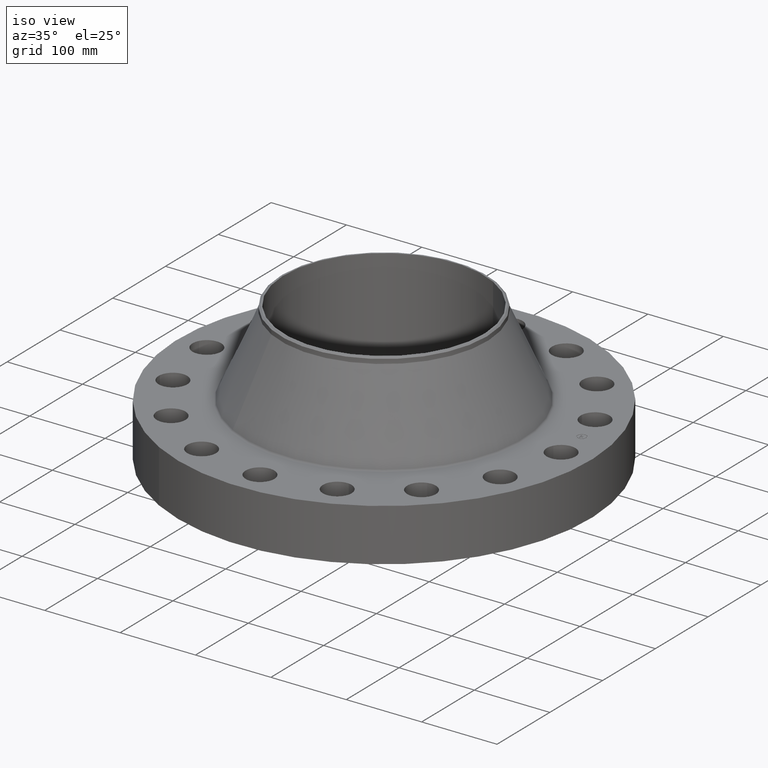
[diagram: clean part render]
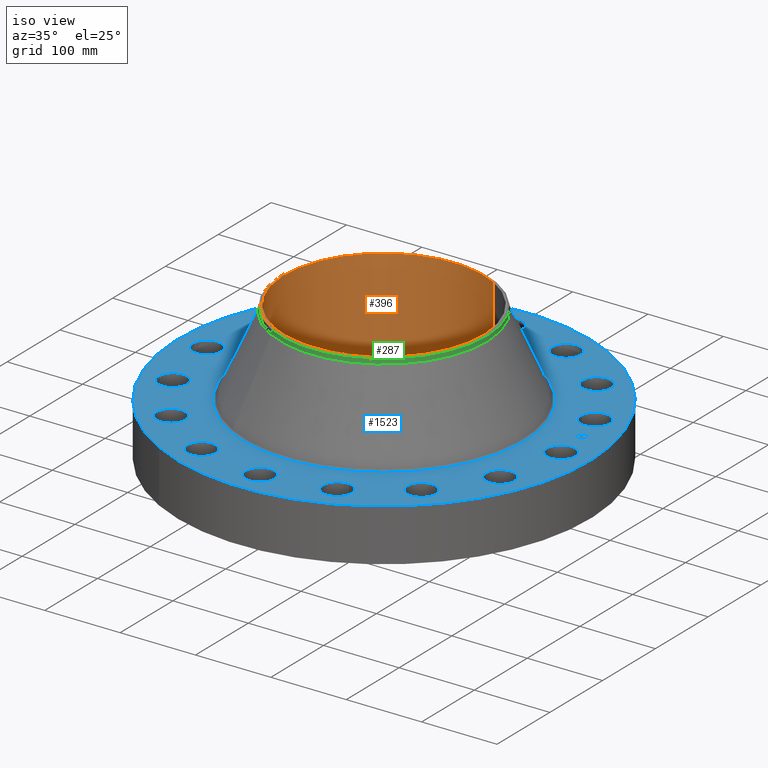
[diagram: same view with three faces highlighted in distinct colors, each labeled with its STEP entity id]
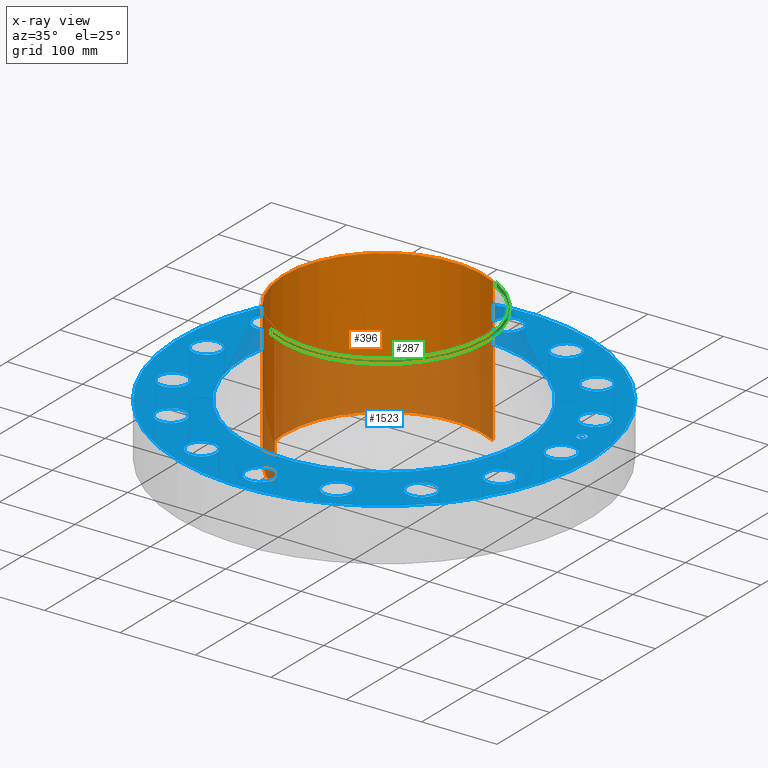
[diagram: x-ray of the same camera — body ghosted, the three highlighted faces saturated]
A machine part, iso view with three faces highlighted in distinct colors.
The next image is the same camera in x-ray (body ghosted, the three faces saturated) — at least one of them is partly hidden behind the body in this view.
Their STEP definitions:

[orange] entity #396 — the highlighted cylindrical surface (partial cylindrical patch) has radius 132.334 mm, axis along (0, 0, -1).
#343=AXIS2_PLACEMENT_3D('Cylinder Axis2P3D',#340,#341,#342) ;
#382=AXIS2_PLACEMENT_3D('Circle Axis2P3D',#380,#381,$) ;
#387=AXIS2_PLACEMENT_3D('Circle Axis2P3D',#385,#386,$) ;
#340=CARTESIAN_POINT('Axis2P3D Location',(0.,0.,3.50000000001)) ;
#349=CARTESIAN_POINT('Vertex',(2.49780705614,4.57220514747,7.25000000003)) ;
#351=CARTESIAN_POINT('Vertex',(-2.49780705614,-4.57220514747,7.25000000003)) ;
#354=CARTESIAN_POINT('Line Origine',(2.49780705614,4.57220514747,3.50000000001)) ;
#358=CARTESIAN_POINT('Vertex',(2.49780705614,4.57220514747,-0.250000000001)) ;
#365=CARTESIAN_POINT('Vertex',(-2.49780705614,-4.57220514747,-0.250000000001)) ;
#368=CARTESIAN_POINT('Line Origine',(-2.49780705614,-4.57220514747,3.50000000001)) ;
#380=CARTESIAN_POINT('Axis2P3D Location',(0.,0.,7.25000000003)) ;
#385=CARTESIAN_POINT('Axis2P3D Location',(0.,0.,-0.250000000001)) ;
#341=DIRECTION('Axis2P3D Direction',(0.,0.,-0.0393700787402)) ;
#342=DIRECTION('Axis2P3D XDirection',(-0.0188750212049,-0.0345504945626,0.)) ;
#355=DIRECTION('Vector Direction',(0.,0.,-0.0393700787402)) ;
#369=DIRECTION('Vector Direction',(0.,0.,-0.0393700787402)) ;
#381=DIRECTION('Axis2P3D Direction',(0.,0.,-0.0393700787402)) ;
#386=DIRECTION('Axis2P3D Direction',(0.,0.,-0.0393700787402)) ;
#356=VECTOR('Line Direction',#355,0.0393700787402) ;
#370=VECTOR('Line Direction',#369,0.0393700787402) ;
#391=ORIENTED_EDGE('',*,*,#384,.F.) ;
#392=ORIENTED_EDGE('',*,*,#372,.T.) ;
#393=ORIENTED_EDGE('',*,*,#389,.T.) ;
#394=ORIENTED_EDGE('',*,*,#360,.F.) ;
#396=ADVANCED_FACE('PartBody',(#395),#344,.F.) ;
#383=CIRCLE('generated circle',#382,5.21000000002) ;
#388=CIRCLE('generated circle',#387,5.21000000002) ;
#344=CYLINDRICAL_SURFACE('generated cylinder',#343,5.21000000002) ;
#360=EDGE_CURVE('',#350,#359,#357,.T.) ;
#372=EDGE_CURVE('',#352,#366,#371,.T.) ;
#384=EDGE_CURVE('',#352,#350,#383,.T.) ;
#389=EDGE_CURVE('',#366,#359,#388,.T.) ;
#390=EDGE_LOOP('',(#391,#392,#393,#394)) ;
#395=FACE_OUTER_BOUND('',#390,.T.) ;
#357=LINE('Line',#354,#356) ;
#371=LINE('Line',#368,#370) ;
#350=VERTEX_POINT('',#349) ;
#352=VERTEX_POINT('',#351) ;
#359=VERTEX_POINT('',#358) ;
#366=VERTEX_POINT('',#365) ;

[blue] entity #1523 — the highlighted planar face has unit normal (0, 0, -1).
#65=AXIS2_PLACEMENT_3D('Circle Axis2P3D',#63,#64,$) ;
#82=AXIS2_PLACEMENT_3D('Circle Axis2P3D',#80,#81,$) ;
#115=AXIS2_PLACEMENT_3D('Circle Axis2P3D',#113,#114,$) ;
#139=AXIS2_PLACEMENT_3D('Circle Axis2P3D',#137,#138,$) ;
#156=AXIS2_PLACEMENT_3D('Circle Axis2P3D',#154,#155,$) ;
#191=AXIS2_PLACEMENT_3D('Circle Axis2P3D',#189,#190,$) ;
#804=AXIS2_PLACEMENT_3D('Circle Axis2P3D',#802,#803,$) ;
#816=AXIS2_PLACEMENT_3D('Circle Axis2P3D',#814,#815,$) ;
#847=AXIS2_PLACEMENT_3D('Circle Axis2P3D',#845,#846,$) ;
#859=AXIS2_PLACEMENT_3D('Circle Axis2P3D',#857,#858,$) ;
#890=AXIS2_PLACEMENT_3D('Circle Axis2P3D',#888,#889,$) ;
#902=AXIS2_PLACEMENT_3D('Circle Axis2P3D',#900,#901,$) ;
#933=AXIS2_PLACEMENT_3D('Circle Axis2P3D',#931,#932,$) ;
#945=AXIS2_PLACEMENT_3D('Circle Axis2P3D',#943,#944,$) ;
#976=AXIS2_PLACEMENT_3D('Circle Axis2P3D',#974,#975,$) ;
#988=AXIS2_PLACEMENT_3D('Circle Axis2P3D',#986,#987,$) ;
#1019=AXIS2_PLACEMENT_3D('Circle Axis2P3D',#1017,#1018,$) ;
#1031=AXIS2_PLACEMENT_3D('Circle Axis2P3D',#1029,#1030,$) ;
#1062=AXIS2_PLACEMENT_3D('Circle Axis2P3D',#1060,#1061,$) ;
#1074=AXIS2_PLACEMENT_3D('Circle Axis2P3D',#1072,#1073,$) ;
#1105=AXIS2_PLACEMENT_3D('Circle Axis2P3D',#1103,#1104,$) ;
#1117=AXIS2_PLACEMENT_3D('Circle Axis2P3D',#1115,#1116,$) ;
#1148=AXIS2_PLACEMENT_3D('Circle Axis2P3D',#1146,#1147,$) ;
#1160=AXIS2_PLACEMENT_3D('Circle Axis2P3D',#1158,#1159,$) ;
#1191=AXIS2_PLACEMENT_3D('Circle Axis2P3D',#1189,#1190,$) ;
#1203=AXIS2_PLACEMENT_3D('Circle Axis2P3D',#1201,#1202,$) ;
#1234=AXIS2_PLACEMENT_3D('Circle Axis2P3D',#1232,#1233,$) ;
#1246=AXIS2_PLACEMENT_3D('Circle Axis2P3D',#1244,#1245,$) ;
#1277=AXIS2_PLACEMENT_3D('Circle Axis2P3D',#1275,#1276,$) ;
#1289=AXIS2_PLACEMENT_3D('Circle Axis2P3D',#1287,#1288,$) ;
#1320=AXIS2_PLACEMENT_3D('Circle Axis2P3D',#1318,#1319,$) ;
#1332=AXIS2_PLACEMENT_3D('Circle Axis2P3D',#1330,#1331,$) ;
#1363=AXIS2_PLACEMENT_3D('Circle Axis2P3D',#1361,#1362,$) ;
#1375=AXIS2_PLACEMENT_3D('Circle Axis2P3D',#1373,#1374,$) ;
#1406=AXIS2_PLACEMENT_3D('Circle Axis2P3D',#1404,#1405,$) ;
#1418=AXIS2_PLACEMENT_3D('Circle Axis2P3D',#1416,#1417,$) ;
#1431=AXIS2_PLACEMENT_3D('Plane Axis2P3D',#1428,#1429,#1430) ;
#1507=AXIS2_PLACEMENT_3D('Circle Axis2P3D',#1505,#1506,$) ;
#1516=AXIS2_PLACEMENT_3D('Circle Axis2P3D',#1514,#1515,$) ;
#46=CARTESIAN_POINT('Vertex',(8.59181307862,0.359569153955,2.75000000001)) ;
#60=CARTESIAN_POINT('Vertex',(9.90818692146,-0.359569153955,2.75000000001)) ;
#63=CARTESIAN_POINT('Axis2P3D Location',(9.25000000004,0.,2.75000000001)) ;
#80=CARTESIAN_POINT('Axis2P3D Location',(9.25000000004,0.,2.75000000001)) ;
#110=CARTESIAN_POINT('Vertex',(-5.15382454002,-9.43401254036,2.75000000001)) ;
#113=CARTESIAN_POINT('Axis2P3D Location',(0.,0.,2.75000000001)) ;
#117=CARTESIAN_POINT('Vertex',(5.15382454002,9.43401254036,2.75000000001)) ;
#137=CARTESIAN_POINT('Axis2P3D Location',(0.,0.,2.75000000001)) ;
#154=CARTESIAN_POINT('Axis2P3D Location',(0.,0.,2.75000000001)) ;
#158=CARTESIAN_POINT('Vertex',(3.51314661007,6.43077173431,2.75000000001)) ;
#160=CARTESIAN_POINT('Vertex',(-3.51314661007,-6.43077173431,2.75000000001)) ;
#189=CARTESIAN_POINT('Axis2P3D Location',(0.,0.,2.75000000001)) ;
#792=CARTESIAN_POINT('Vertex',(-8.0754014085,2.9557459373,2.75000000001)) ;
#799=CARTESIAN_POINT('Vertex',(-9.01636994302,4.12389756148,2.75000000001)) ;
#802=CARTESIAN_POINT('Axis2P3D Location',(-8.54588567576,3.53982174939,2.75000000001)) ;
#814=CARTESIAN_POINT('Axis2P3D Location',(-8.54588567576,3.53982174939,2.75000000001)) ;
#835=CARTESIAN_POINT('Vertex',(6.32958307764,-5.82107550351,2.75000000001)) ;
#842=CARTESIAN_POINT('Vertex',(6.75189237436,-7.26039994849,2.75000000001)) ;
#845=CARTESIAN_POINT('Axis2P3D Location',(6.540737726,-6.540737726,2.75000000001)) ;
#857=CARTESIAN_POINT('Axis2P3D Location',(6.540737726,-6.540737726,2.75000000001)) ;
#878=CARTESIAN_POINT('Vertex',(-6.32958307764,5.82107550351,2.75000000001)) ;
#885=CARTESIAN_POINT('Vertex',(-6.75189237436,7.26039994849,2.75000000001)) ;
#888=CARTESIAN_POINT('Axis2P3D Location',(-6.540737726,6.540737726,2.75000000001)) ;
#900=CARTESIAN_POINT('Axis2P3D Location',(-6.540737726,6.540737726,2.75000000001)) ;
#921=CARTESIAN_POINT('Vertex',(3.62014310103,-7.80019909249,2.75000000001)) ;
#928=CARTESIAN_POINT('Vertex',(3.45950039776,-9.29157225904,2.75000000001)) ;
#931=CARTESIAN_POINT('Axis2P3D Location',(3.53982174939,-8.54588567576,2.75000000001)) ;
#943=CARTESIAN_POINT('Axis2P3D Location',(3.53982174939,-8.54588567576,2.75000000001)) ;
#964=CARTESIAN_POINT('Vertex',(-3.62014310103,7.80019909249,2.75000000001)) ;
#971=CARTESIAN_POINT('Vertex',(-3.45950039776,9.29157225904,2.75000000001)) ;
#974=CARTESIAN_POINT('Axis2P3D Location',(-3.53982174939,8.54588567576,2.75000000001)) ;
#986=CARTESIAN_POINT('Axis2P3D Location',(-3.53982174939,8.54588567576,2.75000000001)) ;
#1007=CARTESIAN_POINT('Vertex',(0.359569153955,-8.59181307862,2.75000000001)) ;
#1014=CARTESIAN_POINT('Vertex',(-0.359569153955,-9.90818692146,2.75000000001)) ;
#1017=CARTESIAN_POINT('Axis2P3D Location',(5.66399144608E-016,-9.25000000004,2.75000000001)) ;
#1029=CARTESIAN_POINT('Axis2P3D Location',(5.66399144608E-016,-9.25000000004,2.75000000001)) ;
#1050=CARTESIAN_POINT('Vertex',(-0.359569153955,8.59181307862,2.75000000001)) ;
#1057=CARTESIAN_POINT('Vertex',(0.359569153955,9.90818692146,2.75000000001)) ;
#1060=CARTESIAN_POINT('Axis2P3D Location',(-1.69919743382E-015,9.25000000004,2.75000000001)) ;
#1072=CARTESIAN_POINT('Axis2P3D Location',(-1.69919743382E-015,9.25000000004,2.75000000001)) ;
#1093=CARTESIAN_POINT('Vertex',(-2.9557459373,-8.0754014085,2.75000000001)) ;
#1100=CARTESIAN_POINT('Vertex',(-4.12389756148,-9.01636994302,2.75000000001)) ;
#1103=CARTESIAN_POINT('Axis2P3D Location',(-3.53982174939,-8.54588567576,2.75000000001)) ;
#1115=CARTESIAN_POINT('Axis2P3D Location',(-3.53982174939,-8.54588567576,2.75000000001)) ;
#1136=CARTESIAN_POINT('Vertex',(2.9557459373,8.0754014085,2.75000000001)) ;
#1143=CARTESIAN_POINT('Vertex',(4.12389756148,9.01636994302,2.75000000001)) ;
#1146=CARTESIAN_POINT('Axis2P3D Location',(3.53982174939,8.54588567576,2.75000000001)) ;
#1158=CARTESIAN_POINT('Axis2P3D Location',(3.53982174939,8.54588567576,2.75000000001)) ;
#1179=CARTESIAN_POINT('Vertex',(-5.82107550351,-6.32958307764,2.75000000001)) ;
#1186=CARTESIAN_POINT('Vertex',(-7.26039994849,-6.75189237436,2.75000000001)) ;
#1189=CARTESIAN_POINT('Axis2P3D Location',(-6.540737726,-6.540737726,2.75000000001)) ;
#1201=CARTESIAN_POINT('Axis2P3D Location',(-6.540737726,-6.540737726,2.75000000001)) ;
#1222=CARTESIAN_POINT('Vertex',(5.82107550351,6.32958307764,2.75000000001)) ;
#1229=CARTESIAN_POINT('Vertex',(7.26039994849,6.75189237436,2.75000000001)) ;
#1232=CARTESIAN_POINT('Axis2P3D Location',(6.540737726,6.540737726,2.75000000001)) ;
#1244=CARTESIAN_POINT('Axis2P3D Location',(6.540737726,6.540737726,2.75000000001)) ;
#1265=CARTESIAN_POINT('Vertex',(-7.80019909249,-3.62014310103,2.75000000001)) ;
#1272=CARTESIAN_POINT('Vertex',(-9.29157225904,-3.45950039776,2.75000000001)) ;
#1275=CARTESIAN_POINT('Axis2P3D Location',(-8.54588567576,-3.53982174939,2.75000000001)) ;
#1287=CARTESIAN_POINT('Axis2P3D Location',(-8.54588567576,-3.53982174939,2.75000000001)) ;
#1308=CARTESIAN_POINT('Vertex',(7.80019909249,3.62014310103,2.75000000001)) ;
#1315=CARTESIAN_POINT('Vertex',(9.29157225904,3.45950039776,2.75000000001)) ;
#1318=CARTESIAN_POINT('Axis2P3D Location',(8.54588567576,3.53982174939,2.75000000001)) ;
#1330=CARTESIAN_POINT('Axis2P3D Location',(8.54588567576,3.53982174939,2.75000000001)) ;
#1351=CARTESIAN_POINT('Vertex',(-8.59181307862,-0.359569153955,2.75000000001)) ;
#1358=CARTESIAN_POINT('Vertex',(-9.90818692146,0.359569153955,2.75000000001)) ;
#1361=CARTESIAN_POINT('Axis2P3D Location',(-9.25000000004,-1.13279828922E-015,2.75000000001)) ;
#1373=CARTESIAN_POINT('Axis2P3D Location',(-9.25000000004,-1.13279828922E-015,2.75000000001)) ;
#1394=CARTESIAN_POINT('Vertex',(8.0754014085,-2.9557459373,2.75000000001)) ;
#1401=CARTESIAN_POINT('Vertex',(9.01636994302,-4.12389756148,2.75000000001)) ;
#1404=CARTESIAN_POINT('Axis2P3D Location',(8.54588567576,-3.53982174939,2.75000000001)) ;
#1416=CARTESIAN_POINT('Axis2P3D Location',(8.54588567576,-3.53982174939,2.75000000001)) ;
#1428=CARTESIAN_POINT('Axis2P3D Location',(0.,10.75,2.75000000001)) ;
#1505=CARTESIAN_POINT('Axis2P3D Location',(9.07226384377,1.80458547866,2.75000000001)) ;
#1509=CARTESIAN_POINT('Vertex',(9.02397898907,2.04732983556,2.75000000001)) ;
#1511=CARTESIAN_POINT('Vertex',(9.12054869847,1.56184112176,2.75000000001)) ;
#1514=CARTESIAN_POINT('Axis2P3D Location',(9.07226384377,1.80458547866,2.75000000001)) ;
#64=DIRECTION('Axis2P3D Direction',(0.,-0.,-0.0393700787402)) ;
#81=DIRECTION('Axis2P3D Direction',(0.,-0.,-0.0393700787402)) ;
#114=DIRECTION('Axis2P3D Direction',(0.,0.,-0.0393700787402)) ;
#138=DIRECTION('Axis2P3D Direction',(0.,0.,-0.0393700787402)) ;
#155=DIRECTION('Axis2P3D Direction',(0.,0.,-0.0393700787402)) ;
#190=DIRECTION('Axis2P3D Direction',(0.,0.,-0.0393700787402)) ;
#803=DIRECTION('Axis2P3D Direction',(0.,0.,-0.0393700787402)) ;
#815=DIRECTION('Axis2P3D Direction',(0.,0.,-0.0393700787402)) ;
#846=DIRECTION('Axis2P3D Direction',(0.,-0.,-0.0393700787402)) ;
#858=DIRECTION('Axis2P3D Direction',(0.,-0.,-0.0393700787402)) ;
#889=DIRECTION('Axis2P3D Direction',(0.,0.,-0.0393700787402)) ;
#901=DIRECTION('Axis2P3D Direction',(0.,0.,-0.0393700787402)) ;
#932=DIRECTION('Axis2P3D Direction',(0.,-0.,-0.0393700787402)) ;
#944=DIRECTION('Axis2P3D Direction',(0.,-0.,-0.0393700787402)) ;
#975=DIRECTION('Axis2P3D Direction',(0.,0.,-0.0393700787402)) ;
#987=DIRECTION('Axis2P3D Direction',(0.,0.,-0.0393700787402)) ;
#1018=DIRECTION('Axis2P3D Direction',(0.,-0.,-0.0393700787402)) ;
#1030=DIRECTION('Axis2P3D Direction',(0.,-0.,-0.0393700787402)) ;
#1061=DIRECTION('Axis2P3D Direction',(0.,0.,-0.0393700787402)) ;
#1073=DIRECTION('Axis2P3D Direction',(0.,0.,-0.0393700787402)) ;
#1104=DIRECTION('Axis2P3D Direction',(-0.,0.,-0.0393700787402)) ;
#1116=DIRECTION('Axis2P3D Direction',(-0.,0.,-0.0393700787402)) ;
#1147=DIRECTION('Axis2P3D Direction',(0.,0.,-0.0393700787402)) ;
#1159=DIRECTION('Axis2P3D Direction',(0.,0.,-0.0393700787402)) ;
#1190=DIRECTION('Axis2P3D Direction',(-0.,0.,-0.0393700787402)) ;
#1202=DIRECTION('Axis2P3D Direction',(-0.,0.,-0.0393700787402)) ;
#1233=DIRECTION('Axis2P3D Direction',(0.,0.,-0.0393700787402)) ;
#1245=DIRECTION('Axis2P3D Direction',(0.,0.,-0.0393700787402)) ;
#1276=DIRECTION('Axis2P3D Direction',(-0.,0.,-0.0393700787402)) ;
#1288=DIRECTION('Axis2P3D Direction',(-0.,0.,-0.0393700787402)) ;
#1319=DIRECTION('Axis2P3D Direction',(0.,0.,-0.0393700787402)) ;
#1331=DIRECTION('Axis2P3D Direction',(0.,0.,-0.0393700787402)) ;
#1362=DIRECTION('Axis2P3D Direction',(-0.,0.,-0.0393700787402)) ;
#1374=DIRECTION('Axis2P3D Direction',(-0.,0.,-0.0393700787402)) ;
#1405=DIRECTION('Axis2P3D Direction',(0.,-0.,-0.0393700787402)) ;
#1417=DIRECTION('Axis2P3D Direction',(0.,-0.,-0.0393700787402)) ;
#1429=DIRECTION('Axis2P3D Direction',(0.,0.,-0.0393700787402)) ;
#1430=DIRECTION('Axis2P3D XDirection',(0.0393700787402,0.,0.)) ;
#1506=DIRECTION('Axis2P3D Direction',(0.,0.,-0.0393700787402)) ;
#1515=DIRECTION('Axis2P3D Direction',(0.,0.,-0.0393700787402)) ;
#1434=ORIENTED_EDGE('',*,*,#141,.F.) ;
#1435=ORIENTED_EDGE('',*,*,#119,.F.) ;
#1438=ORIENTED_EDGE('',*,*,#67,.T.) ;
#1439=ORIENTED_EDGE('',*,*,#84,.T.) ;
#1442=ORIENTED_EDGE('',*,*,#193,.T.) ;
#1443=ORIENTED_EDGE('',*,*,#162,.T.) ;
#1446=ORIENTED_EDGE('',*,*,#1420,.T.) ;
#1447=ORIENTED_EDGE('',*,*,#1408,.T.) ;
#1450=ORIENTED_EDGE('',*,*,#861,.T.) ;
#1451=ORIENTED_EDGE('',*,*,#849,.T.) ;
#1454=ORIENTED_EDGE('',*,*,#947,.T.) ;
#1455=ORIENTED_EDGE('',*,*,#935,.T.) ;
#1458=ORIENTED_EDGE('',*,*,#1033,.T.) ;
#1459=ORIENTED_EDGE('',*,*,#1021,.T.) ;
#1462=ORIENTED_EDGE('',*,*,#1119,.T.) ;
#1463=ORIENTED_EDGE('',*,*,#1107,.T.) ;
#1466=ORIENTED_EDGE('',*,*,#1205,.T.) ;
#1467=ORIENTED_EDGE('',*,*,#1193,.T.) ;
#1470=ORIENTED_EDGE('',*,*,#1291,.T.) ;
#1471=ORIENTED_EDGE('',*,*,#1279,.T.) ;
#1474=ORIENTED_EDGE('',*,*,#1377,.T.) ;
#1475=ORIENTED_EDGE('',*,*,#1365,.T.) ;
#1478=ORIENTED_EDGE('',*,*,#818,.T.) ;
#1479=ORIENTED_EDGE('',*,*,#806,.T.) ;
#1482=ORIENTED_EDGE('',*,*,#904,.T.) ;
#1483=ORIENTED_EDGE('',*,*,#892,.T.) ;
#1486=ORIENTED_EDGE('',*,*,#990,.T.) ;
#1487=ORIENTED_EDGE('',*,*,#978,.T.) ;
#1490=ORIENTED_EDGE('',*,*,#1076,.T.) ;
#1491=ORIENTED_EDGE('',*,*,#1064,.T.) ;
#1494=ORIENTED_EDGE('',*,*,#1162,.T.) ;
#1495=ORIENTED_EDGE('',*,*,#1150,.T.) ;
#1498=ORIENTED_EDGE('',*,*,#1248,.T.) ;
#1499=ORIENTED_EDGE('',*,*,#1236,.T.) ;
#1502=ORIENTED_EDGE('',*,*,#1334,.T.) ;
#1503=ORIENTED_EDGE('',*,*,#1322,.T.) ;
#1520=ORIENTED_EDGE('',*,*,#1513,.T.) ;
#1521=ORIENTED_EDGE('',*,*,#1518,.T.) ;
#1440=FACE_BOUND('',#1437,.T.) ;
#1444=FACE_BOUND('',#1441,.T.) ;
#1448=FACE_BOUND('',#1445,.T.) ;
#1452=FACE_BOUND('',#1449,.T.) ;
#1456=FACE_BOUND('',#1453,.T.) ;
#1460=FACE_BOUND('',#1457,.T.) ;
#1464=FACE_BOUND('',#1461,.T.) ;
#1468=FACE_BOUND('',#1465,.T.) ;
#1472=FACE_BOUND('',#1469,.T.) ;
#1476=FACE_BOUND('',#1473,.T.) ;
#1480=FACE_BOUND('',#1477,.T.) ;
#1484=FACE_BOUND('',#1481,.T.) ;
#1488=FACE_BOUND('',#1485,.T.) ;
#1492=FACE_BOUND('',#1489,.T.) ;
#1496=FACE_BOUND('',#1493,.T.) ;
#1500=FACE_BOUND('',#1497,.T.) ;
#1504=FACE_BOUND('',#1501,.T.) ;
#1522=FACE_BOUND('',#1519,.T.) ;
#1523=ADVANCED_FACE('PartBody',(#1436,#1440,#1444,#1448,#1452,#1456,#1460,#1464,#1468,#1472,#1476,#1480,#1484,#1488,#1492,#1496,#1500,#1504,#1522),#1432,.F.) ;
#66=CIRCLE('generated circle',#65,0.750000000003) ;
#83=CIRCLE('generated circle',#82,0.750000000003) ;
#116=CIRCLE('generated circle',#115,10.75) ;
#140=CIRCLE('generated circle',#139,10.75) ;
#157=CIRCLE('generated circle',#156,7.32782533925) ;
#192=CIRCLE('generated circle',#191,7.32782533925) ;
#805=CIRCLE('generated circle',#804,0.750000000003) ;
#817=CIRCLE('generated circle',#816,0.750000000003) ;
#848=CIRCLE('generated circle',#847,0.750000000003) ;
#860=CIRCLE('generated circle',#859,0.750000000003) ;
#891=CIRCLE('generated circle',#890,0.750000000003) ;
#903=CIRCLE('generated circle',#902,0.750000000003) ;
#934=CIRCLE('generated circle',#933,0.750000000003) ;
#946=CIRCLE('generated circle',#945,0.750000000003) ;
#977=CIRCLE('generated circle',#976,0.750000000003) ;
#989=CIRCLE('generated circle',#988,0.750000000003) ;
#1020=CIRCLE('generated circle',#1019,0.750000000003) ;
#1032=CIRCLE('generated circle',#1031,0.750000000003) ;
#1063=CIRCLE('generated circle',#1062,0.750000000003) ;
#1075=CIRCLE('generated circle',#1074,0.750000000003) ;
#1106=CIRCLE('generated circle',#1105,0.750000000003) ;
#1118=CIRCLE('generated circle',#1117,0.750000000003) ;
#1149=CIRCLE('generated circle',#1148,0.750000000003) ;
#1161=CIRCLE('generated circle',#1160,0.750000000003) ;
#1192=CIRCLE('generated circle',#1191,0.750000000003) ;
#1204=CIRCLE('generated circle',#1203,0.750000000003) ;
#1235=CIRCLE('generated circle',#1234,0.750000000003) ;
#1247=CIRCLE('generated circle',#1246,0.750000000003) ;
#1278=CIRCLE('generated circle',#1277,0.750000000003) ;
#1290=CIRCLE('generated circle',#1289,0.750000000003) ;
#1321=CIRCLE('generated circle',#1320,0.750000000003) ;
#1333=CIRCLE('generated circle',#1332,0.750000000003) ;
#1364=CIRCLE('generated circle',#1363,0.750000000003) ;
#1376=CIRCLE('generated circle',#1375,0.750000000003) ;
#1407=CIRCLE('generated circle',#1406,0.750000000003) ;
#1419=CIRCLE('generated circle',#1418,0.750000000003) ;
#1508=CIRCLE('generated circle',#1507,0.247500000001) ;
#1517=CIRCLE('generated circle',#1516,0.247500000001) ;
#67=EDGE_CURVE('',#47,#61,#66,.T.) ;
#84=EDGE_CURVE('',#61,#47,#83,.T.) ;
#119=EDGE_CURVE('',#111,#118,#116,.T.) ;
#141=EDGE_CURVE('',#118,#111,#140,.T.) ;
#162=EDGE_CURVE('',#159,#161,#157,.T.) ;
#193=EDGE_CURVE('',#161,#159,#192,.T.) ;
#806=EDGE_CURVE('',#793,#800,#805,.T.) ;
#818=EDGE_CURVE('',#800,#793,#817,.T.) ;
#849=EDGE_CURVE('',#836,#843,#848,.T.) ;
#861=EDGE_CURVE('',#843,#836,#860,.T.) ;
#892=EDGE_CURVE('',#879,#886,#891,.T.) ;
#904=EDGE_CURVE('',#886,#879,#903,.T.) ;
#935=EDGE_CURVE('',#922,#929,#934,.T.) ;
#947=EDGE_CURVE('',#929,#922,#946,.T.) ;
#978=EDGE_CURVE('',#965,#972,#977,.T.) ;
#990=EDGE_CURVE('',#972,#965,#989,.T.) ;
#1021=EDGE_CURVE('',#1008,#1015,#1020,.T.) ;
#1033=EDGE_CURVE('',#1015,#1008,#1032,.T.) ;
#1064=EDGE_CURVE('',#1051,#1058,#1063,.T.) ;
#1076=EDGE_CURVE('',#1058,#1051,#1075,.T.) ;
#1107=EDGE_CURVE('',#1094,#1101,#1106,.T.) ;
#1119=EDGE_CURVE('',#1101,#1094,#1118,.T.) ;
#1150=EDGE_CURVE('',#1137,#1144,#1149,.T.) ;
#1162=EDGE_CURVE('',#1144,#1137,#1161,.T.) ;
#1193=EDGE_CURVE('',#1180,#1187,#1192,.T.) ;
#1205=EDGE_CURVE('',#1187,#1180,#1204,.T.) ;
#1236=EDGE_CURVE('',#1223,#1230,#1235,.T.) ;
#1248=EDGE_CURVE('',#1230,#1223,#1247,.T.) ;
#1279=EDGE_CURVE('',#1266,#1273,#1278,.T.) ;
#1291=EDGE_CURVE('',#1273,#1266,#1290,.T.) ;
#1322=EDGE_CURVE('',#1309,#1316,#1321,.T.) ;
#1334=EDGE_CURVE('',#1316,#1309,#1333,.T.) ;
#1365=EDGE_CURVE('',#1352,#1359,#1364,.T.) ;
#1377=EDGE_CURVE('',#1359,#1352,#1376,.T.) ;
#1408=EDGE_CURVE('',#1395,#1402,#1407,.T.) ;
#1420=EDGE_CURVE('',#1402,#1395,#1419,.T.) ;
#1513=EDGE_CURVE('',#1510,#1512,#1508,.T.) ;
#1518=EDGE_CURVE('',#1512,#1510,#1517,.T.) ;
#1433=EDGE_LOOP('',(#1434,#1435)) ;
#1437=EDGE_LOOP('',(#1438,#1439)) ;
#1441=EDGE_LOOP('',(#1442,#1443)) ;
#1445=EDGE_LOOP('',(#1446,#1447)) ;
#1449=EDGE_LOOP('',(#1450,#1451)) ;
#1453=EDGE_LOOP('',(#1454,#1455)) ;
#1457=EDGE_LOOP('',(#1458,#1459)) ;
#1461=EDGE_LOOP('',(#1462,#1463)) ;
#1465=EDGE_LOOP('',(#1466,#1467)) ;
#1469=EDGE_LOOP('',(#1470,#1471)) ;
#1473=EDGE_LOOP('',(#1474,#1475)) ;
#1477=EDGE_LOOP('',(#1478,#1479)) ;
#1481=EDGE_LOOP('',(#1482,#1483)) ;
#1485=EDGE_LOOP('',(#1486,#1487)) ;
#1489=EDGE_LOOP('',(#1490,#1491)) ;
#1493=EDGE_LOOP('',(#1494,#1495)) ;
#1497=EDGE_LOOP('',(#1498,#1499)) ;
#1501=EDGE_LOOP('',(#1502,#1503)) ;
#1519=EDGE_LOOP('',(#1520,#1521)) ;
#1436=FACE_OUTER_BOUND('',#1433,.T.) ;
#1432=PLANE('',#1431) ;
#47=VERTEX_POINT('',#46) ;
#61=VERTEX_POINT('',#60) ;
#111=VERTEX_POINT('',#110) ;
#118=VERTEX_POINT('',#117) ;
#159=VERTEX_POINT('',#158) ;
#161=VERTEX_POINT('',#160) ;
#793=VERTEX_POINT('',#792) ;
#800=VERTEX_POINT('',#799) ;
#836=VERTEX_POINT('',#835) ;
#843=VERTEX_POINT('',#842) ;
#879=VERTEX_POINT('',#878) ;
#886=VERTEX_POINT('',#885) ;
#922=VERTEX_POINT('',#921) ;
#929=VERTEX_POINT('',#928) ;
#965=VERTEX_POINT('',#964) ;
#972=VERTEX_POINT('',#971) ;
#1008=VERTEX_POINT('',#1007) ;
#1015=VERTEX_POINT('',#1014) ;
#1051=VERTEX_POINT('',#1050) ;
#1058=VERTEX_POINT('',#1057) ;
#1094=VERTEX_POINT('',#1093) ;
#1101=VERTEX_POINT('',#1100) ;
#1137=VERTEX_POINT('',#1136) ;
#1144=VERTEX_POINT('',#1143) ;
#1180=VERTEX_POINT('',#1179) ;
#1187=VERTEX_POINT('',#1186) ;
#1223=VERTEX_POINT('',#1222) ;
#1230=VERTEX_POINT('',#1229) ;
#1266=VERTEX_POINT('',#1265) ;
#1273=VERTEX_POINT('',#1272) ;
#1309=VERTEX_POINT('',#1308) ;
#1316=VERTEX_POINT('',#1315) ;
#1352=VERTEX_POINT('',#1351) ;
#1359=VERTEX_POINT('',#1358) ;
#1395=VERTEX_POINT('',#1394) ;
#1402=VERTEX_POINT('',#1401) ;
#1510=VERTEX_POINT('',#1509) ;
#1512=VERTEX_POINT('',#1511) ;

[green] entity #287 — the highlighted cylindrical surface (partial cylindrical patch) has radius 136.525 mm, axis along (0, 0, -1).
#220=AXIS2_PLACEMENT_3D('Circle Axis2P3D',#218,#219,$) ;
#252=AXIS2_PLACEMENT_3D('Cylinder Axis2P3D',#249,#250,#251) ;
#270=AXIS2_PLACEMENT_3D('Circle Axis2P3D',#268,#269,$) ;
#277=AXIS2_PLACEMENT_3D('Circle Axis2P3D',#275,#276,$) ;
#215=CARTESIAN_POINT('Vertex',(2.57691227001,4.71700627018,6.94759002244)) ;
#218=CARTESIAN_POINT('Axis2P3D Location',(0.,0.,6.94759002244)) ;
#222=CARTESIAN_POINT('Vertex',(-2.57691227001,-4.71700627018,6.94759002244)) ;
#249=CARTESIAN_POINT('Axis2P3D Location',(0.,0.,3.50000000001)) ;
#254=CARTESIAN_POINT('Line Origine',(-2.57691227001,-4.71700627018,7.06570025866)) ;
#258=CARTESIAN_POINT('Vertex',(-2.57691227001,-4.71700627018,7.18381049488)) ;
#261=CARTESIAN_POINT('Line Origine',(2.57691227001,4.71700627018,7.06570025866)) ;
#265=CARTESIAN_POINT('Vertex',(2.57691227001,4.71700627018,7.18381049488)) ;
#268=CARTESIAN_POINT('Axis2P3D Location',(0.,0.,7.18381049488)) ;
#272=CARTESIAN_POINT('Vertex',(2.57691227001,-4.71700627018,7.18381049488)) ;
#275=CARTESIAN_POINT('Axis2P3D Location',(0.,0.,7.18381049488)) ;
#219=DIRECTION('Axis2P3D Direction',(0.,0.,-0.0393700787402)) ;
#250=DIRECTION('Axis2P3D Direction',(0.,0.,-0.0393700787402)) ;
#251=DIRECTION('Axis2P3D XDirection',(-0.0188750212049,-0.0345504945626,0.)) ;
#255=DIRECTION('Vector Direction',(0.,0.,-0.0393700787402)) ;
#262=DIRECTION('Vector Direction',(0.,0.,-0.0393700787402)) ;
#269=DIRECTION('Axis2P3D Direction',(0.,0.,-0.0393700787402)) ;
#276=DIRECTION('Axis2P3D Direction',(0.,0.,-0.0393700787402)) ;
#256=VECTOR('Line Direction',#255,0.0393700787402) ;
#263=VECTOR('Line Direction',#262,0.0393700787402) ;
#281=ORIENTED_EDGE('',*,*,#260,.F.) ;
#282=ORIENTED_EDGE('',*,*,#224,.F.) ;
#283=ORIENTED_EDGE('',*,*,#267,.T.) ;
#284=ORIENTED_EDGE('',*,*,#274,.F.) ;
#285=ORIENTED_EDGE('',*,*,#279,.T.) ;
#287=ADVANCED_FACE('PartBody',(#286),#253,.T.) ;
#221=CIRCLE('generated circle',#220,5.37500000002) ;
#271=CIRCLE('generated circle',#270,5.37500000002) ;
#278=CIRCLE('generated circle',#277,5.37500000002) ;
#253=CYLINDRICAL_SURFACE('generated cylinder',#252,5.37500000002) ;
#224=EDGE_CURVE('',#216,#223,#221,.T.) ;
#260=EDGE_CURVE('',#223,#259,#257,.F.) ;
#267=EDGE_CURVE('',#216,#266,#264,.F.) ;
#274=EDGE_CURVE('',#273,#266,#271,.F.) ;
#279=EDGE_CURVE('',#273,#259,#278,.T.) ;
#280=EDGE_LOOP('',(#281,#282,#283,#284,#285)) ;
#286=FACE_OUTER_BOUND('',#280,.T.) ;
#257=LINE('Line',#254,#256) ;
#264=LINE('Line',#261,#263) ;
#216=VERTEX_POINT('',#215) ;
#223=VERTEX_POINT('',#222) ;
#259=VERTEX_POINT('',#258) ;
#266=VERTEX_POINT('',#265) ;
#273=VERTEX_POINT('',#272) ;